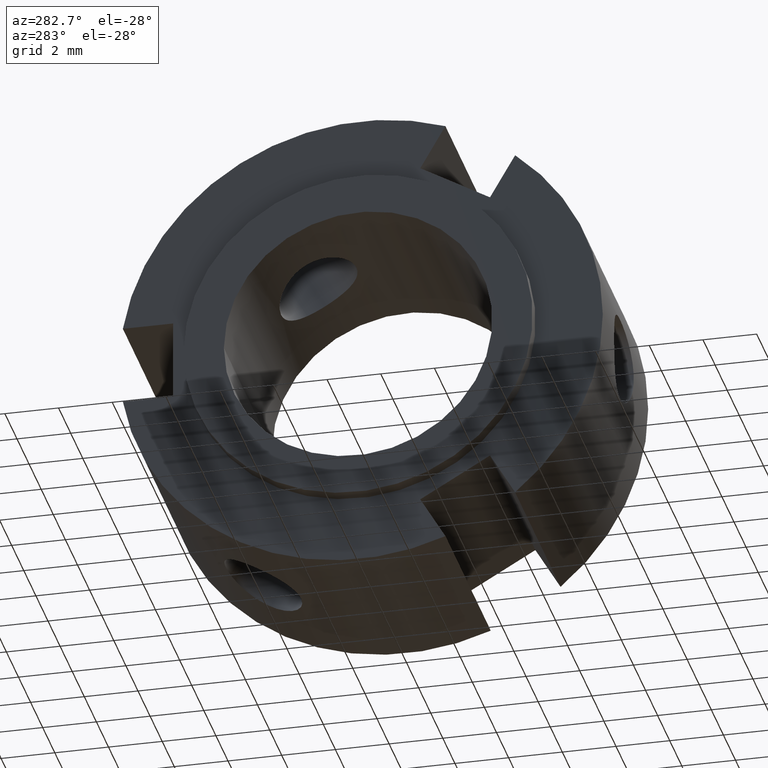
[diagram: clean part render]
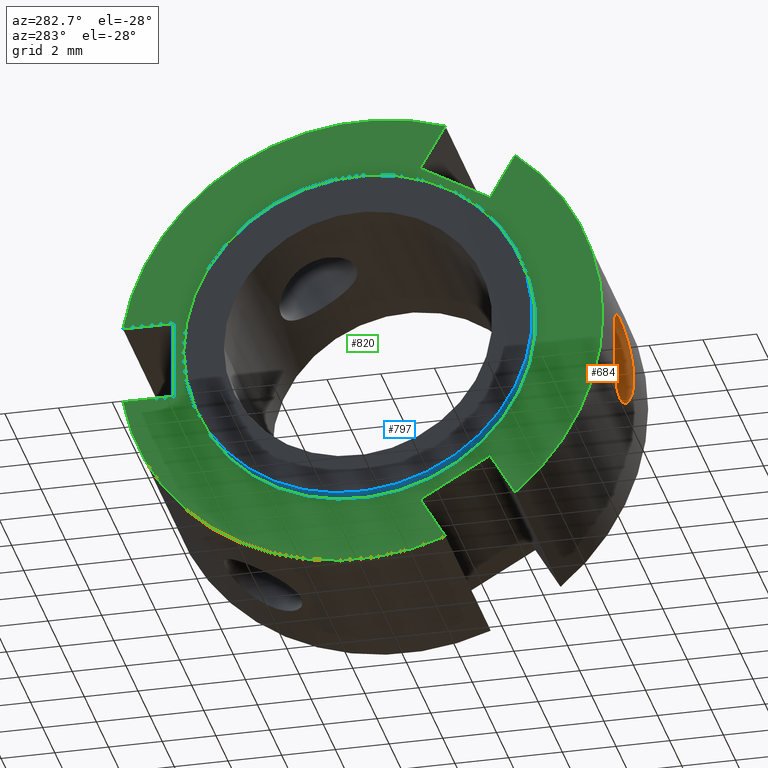
[diagram: same view with three faces highlighted in distinct colors, each labeled with its STEP entity id]
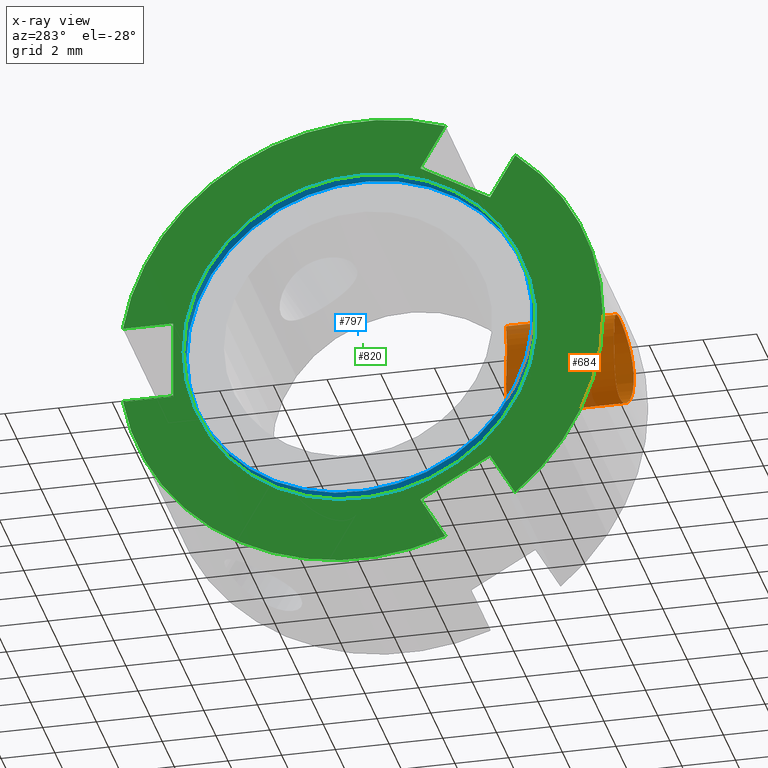
[diagram: x-ray of the same camera — body ghosted, the three highlighted faces saturated]
A machine part, auxiliary view with three faces highlighted in distinct colors.
The next image is the same camera in x-ray (body ghosted, the three faces saturated) — at least one of them is partly hidden behind the body in this view.
Their STEP definitions:

[orange] entity #684 — the highlighted cylindrical surface (bore or boss wall) has radius 1.621 mm, axis along (0, 1, 0).
#593=CARTESIAN_POINT('',(3.999999999999996,-8.852816444499453,1.621000000000000));
#594=VERTEX_POINT('',#593);
#595=CARTESIAN_POINT('',(3.999999999999996,-8.852816444499451,1.621000000000000));
#596=CARTESIAN_POINT('',(4.204019456087718,-8.852816444499451,1.621000000000000));
#597=CARTESIAN_POINT('',(4.421325716287628,-8.860599332632773,1.580135307282737));
#598=CARTESIAN_POINT('',(4.820570121582454,-8.888534203180154,1.414569808063518));
#599=CARTESIAN_POINT('',(5.002547533836670,-8.908263527977558,1.289892650770113));
#600=CARTESIAN_POINT('',(5.289887393896620,-8.945158942178248,1.002552790710165));
#601=CARTESIAN_POINT('',(5.414568672892385,-8.964747677045260,0.820573131104848));
#602=CARTESIAN_POINT('',(5.580137162663212,-8.992359524325192,0.421320970052414));
#603=CARTESIAN_POINT('',(5.620999999999996,-8.999999999999996,0.204011991165529));
#604=CARTESIAN_POINT('',(5.620999999999996,-8.999999999999996,-0.204011991165529));
#605=CARTESIAN_POINT('',(5.580137162663212,-8.992359524325192,-0.421320970052414));
#606=CARTESIAN_POINT('',(5.414568672892385,-8.964747677045260,-0.820573131104848));
#607=CARTESIAN_POINT('',(5.289887393896620,-8.945158942178248,-1.002552790710164));
#608=CARTESIAN_POINT('',(5.002547533836670,-8.908263527977558,-1.289892650770113));
#609=CARTESIAN_POINT('',(4.820570121582454,-8.888534203180154,-1.414569808063518));
#610=CARTESIAN_POINT('',(4.421325716287628,-8.860599332632773,-1.580135307282737));
#611=CARTESIAN_POINT('',(4.204019456087718,-8.852816444499453,-1.621000000000000));
#612=CARTESIAN_POINT('',(3.795980543912274,-8.852816444499453,-1.621000000000000));
#613=CARTESIAN_POINT('',(3.578674283712364,-8.860599332632773,-1.580135307282737));
#614=CARTESIAN_POINT('',(3.179429878417539,-8.888534203180154,-1.414569808063518));
#615=CARTESIAN_POINT('',(2.997452466163322,-8.908263527977558,-1.289892650770113));
#616=CARTESIAN_POINT('',(2.710112606103373,-8.945158942178248,-1.002552790710165));
#617=CARTESIAN_POINT('',(2.585431327107606,-8.964747677045260,-0.820573131104848));
#618=CARTESIAN_POINT('',(2.419862837336780,-8.992359524325192,-0.421320970052414));
#619=CARTESIAN_POINT('',(2.378999999999996,-8.999999999999996,-0.204011991165529));
#620=CARTESIAN_POINT('',(2.378999999999996,-8.999999999999996,0.204011991165528));
#621=CARTESIAN_POINT('',(2.419862837336780,-8.992359524325192,0.421320970052413));
#622=CARTESIAN_POINT('',(2.585431327107606,-8.964747677045260,0.820573131104847));
#623=CARTESIAN_POINT('',(2.710112606103372,-8.945158942178248,1.002552790710164));
#624=CARTESIAN_POINT('',(2.997452466163322,-8.908263527977558,1.289892650770113));
#625=CARTESIAN_POINT('',(3.179429878417539,-8.888534203180154,1.414569808063519));
#626=CARTESIAN_POINT('',(3.578674283712365,-8.860599332632773,1.580135307282737));
#627=CARTESIAN_POINT('',(3.795980543912274,-8.852816444499451,1.621000000000000));
#628=CARTESIAN_POINT('',(3.999999999999995,-8.852816444499451,1.621000000000000));
#629=B_SPLINE_CURVE_WITH_KNOTS('',3,(#595,#596,#597,#598,#599,#600,#601,#602,#603,#604,#605,#606,#607,#608,#609,#610,#611,#612,#613,#614,#615,#616,#617,#618,#619,#620,#621,#622,#623,#624,#625,#626,#627,#628),.UNSPECIFIED.,.T.,.U.,(4,2,2,2,2,2,2,2,2,2,2,2,2,2,2,2,4),(0.0,0.061205836826317,0.122411673652633,0.183615271002292,0.244818868351951,0.306022465701609,0.367226063051268,0.428431899877585,0.489637736703901,0.550843573530218,0.612049410356534,0.673253007706193,0.734456605055852,0.795660202405510,0.856863799755169,0.918069636581486,0.979275473407802),.UNSPECIFIED.);
#630=EDGE_CURVE('',#594,#594,#629,.T.);
#635=CARTESIAN_POINT('',(3.999999999999996,-26.598574287801391,0.0));
#636=DIRECTION('',(0.0,1.0,0.0));
#637=DIRECTION('',(-1.0,0.0,0.0));
#638=AXIS2_PLACEMENT_3D('',#635,#636,#637);
#639=CYLINDRICAL_SURFACE('',#638,1.621000000000000);
#640=ORIENTED_EDGE('',*,*,#630,.F.);
#641=EDGE_LOOP('',(#640));
#642=FACE_OUTER_BOUND('',#641,.T.);
#643=CARTESIAN_POINT('',(3.999999999999996,-4.729942811493602,1.621000000000000));
#644=VERTEX_POINT('',#643);
#645=CARTESIAN_POINT('',(3.999999999999996,-4.729942811493602,1.621000000000000));
#646=CARTESIAN_POINT('',(3.794809539521241,-4.729942811493602,1.621000000000000));
#647=CARTESIAN_POINT('',(3.577054941118309,-4.744696200663902,1.579687599377620));
#648=CARTESIAN_POINT('',(3.178172193797658,-4.796734273099067,1.413822800529395));
#649=CARTESIAN_POINT('',(2.996900401569943,-4.833137749137962,1.289340586176735));
#650=CARTESIAN_POINT('',(2.710718451743308,-4.900538191553338,1.003158636350099));
#651=CARTESIAN_POINT('',(2.586190709500040,-4.936087664543252,0.821863192988777));
#652=CARTESIAN_POINT('',(2.420292057209590,-4.986138971953535,0.422893238604827));
#653=CARTESIAN_POINT('',(2.378999999999996,-5.0,0.205105818386821));
#654=CARTESIAN_POINT('',(2.378999999999996,-5.0,-0.205105818386821));
#655=CARTESIAN_POINT('',(2.420292057209590,-4.986138971953535,-0.422893238604827));
#656=CARTESIAN_POINT('',(2.586190709500040,-4.936087664543252,-0.821863192988777));
#657=CARTESIAN_POINT('',(2.710718451743308,-4.900538191553338,-1.003158636350099));
#658=CARTESIAN_POINT('',(2.996900401569943,-4.833137749137962,-1.289340586176735));
#659=CARTESIAN_POINT('',(3.178172193797658,-4.796734273099067,-1.413822800529395));
#660=CARTESIAN_POINT('',(3.577054941118309,-4.744696200663902,-1.579687599377620));
#661=CARTESIAN_POINT('',(3.794809539521241,-4.729942811493602,-1.621000000000000));
#662=CARTESIAN_POINT('',(4.205190460478750,-4.729942811493602,-1.621000000000000));
#663=CARTESIAN_POINT('',(4.422945058881683,-4.744696200663902,-1.579687599377621));
#664=CARTESIAN_POINT('',(4.821827806202333,-4.796734273099067,-1.413822800529395));
#665=CARTESIAN_POINT('',(5.003099598430048,-4.833137749137962,-1.289340586176735));
#666=CARTESIAN_POINT('',(5.289281548256684,-4.900538191553338,-1.003158636350099));
#667=CARTESIAN_POINT('',(5.413809290499953,-4.936087664543252,-0.821863192988777));
#668=CARTESIAN_POINT('',(5.579707942790403,-4.986138971953535,-0.422893238604827));
#669=CARTESIAN_POINT('',(5.620999999999996,-5.0,-0.205105818386821));
#670=CARTESIAN_POINT('',(5.620999999999996,-5.0,0.205105818386821));
#671=CARTESIAN_POINT('',(5.579707942790403,-4.986138971953535,0.422893238604827));
#672=CARTESIAN_POINT('',(5.413809290499953,-4.936087664543252,0.821863192988777));
#673=CARTESIAN_POINT('',(5.289281548256684,-4.900538191553338,1.003158636350099));
#674=CARTESIAN_POINT('',(5.003099598430048,-4.833137749137962,1.289340586176735));
#675=CARTESIAN_POINT('',(4.821827806202333,-4.796734273099067,1.413822800529395));
#676=CARTESIAN_POINT('',(4.422945058881683,-4.744696200663902,1.579687599377620));
#677=CARTESIAN_POINT('',(4.205190460478751,-4.729942811493602,1.621000000000000));
#678=CARTESIAN_POINT('',(3.999999999999996,-4.729942811493602,1.621000000000000));
#679=B_SPLINE_CURVE_WITH_KNOTS('',3,(#645,#646,#647,#648,#649,#650,#651,#652,#653,#654,#655,#656,#657,#658,#659,#660,#661,#662,#663,#664,#665,#666,#667,#668,#669,#670,#671,#672,#673,#674,#675,#676,#677,#678),.UNSPECIFIED.,.T.,.U.,(4,2,2,2,2,2,2,2,2,2,2,2,2,2,2,2,4),(0.0,0.061557138143626,0.123114276287253,0.184646021803299,0.246177767319345,0.307709512835392,0.369241258351438,0.430798396495064,0.492355534638691,0.553912672782317,0.615469810925944,0.677001556441990,0.738533301958036,0.800065047474082,0.861596792990129,0.923153931133755,0.984711069277382),.UNSPECIFIED.);
#680=EDGE_CURVE('',#644,#644,#679,.T.);
#681=ORIENTED_EDGE('',*,*,#680,.F.);
#682=EDGE_LOOP('',(#681));
#683=FACE_BOUND('',#682,.T.);
#684=ADVANCED_FACE('',(#642,#683),#639,.F.);

[blue] entity #797 — the highlighted cylindrical surface (bore or boss wall) has radius 6.5 mm, axis along (1, 0, 0).
#755=CARTESIAN_POINT('',(0.0,6.499999999999998,0.0));
#756=VERTEX_POINT('',#755);
#757=CARTESIAN_POINT('',(0.0,0.0,0.0));
#758=DIRECTION('',(1.0,0.0,0.0));
#759=DIRECTION('',(0.0,1.0,0.0));
#760=AXIS2_PLACEMENT_3D('',#757,#758,#759);
#761=CIRCLE('',#760,6.499999999999998);
#762=EDGE_CURVE('',#756,#756,#761,.T.);
#778=CARTESIAN_POINT('',(0.249999999999999,0.0,0.0));
#779=DIRECTION('',(1.0,0.0,0.0));
#780=DIRECTION('',(0.0,1.0,0.0));
#781=AXIS2_PLACEMENT_3D('',#778,#779,#780);
#782=CYLINDRICAL_SURFACE('',#781,6.499999999999998);
#783=CARTESIAN_POINT('',(0.499999999999998,6.499999999999998,0.0));
#784=VERTEX_POINT('',#783);
#785=CARTESIAN_POINT('',(0.499999999999998,0.0,0.0));
#786=DIRECTION('',(1.0,0.0,0.0));
#787=DIRECTION('',(0.0,1.0,0.0));
#788=AXIS2_PLACEMENT_3D('',#785,#786,#787);
#789=CIRCLE('',#788,6.499999999999998);
#790=EDGE_CURVE('',#784,#784,#789,.T.);
#791=ORIENTED_EDGE('',*,*,#790,.F.);
#792=EDGE_LOOP('',(#791));
#793=FACE_OUTER_BOUND('',#792,.T.);
#794=ORIENTED_EDGE('',*,*,#762,.T.);
#795=EDGE_LOOP('',(#794));
#796=FACE_BOUND('',#795,.T.);
#797=ADVANCED_FACE('',(#793,#796),#782,.T.);

[green] entity #820 — the highlighted planar face has unit normal (-1, 0, 0).
#73=CARTESIAN_POINT('',(0.499999999999998,-4.799038105676660,-5.312177826491067));
#74=VERTEX_POINT('',#73);
#75=CARTESIAN_POINT('',(0.499999999999998,-5.736097943001372,-6.935213074469693));
#76=VERTEX_POINT('',#75);
#77=CARTESIAN_POINT('',(0.499999999999999,-4.799038105676662,-5.312177826491067));
#78=DIRECTION('',(0.0,-0.500000000000000,-0.866025403784438));
#79=VECTOR('',#78,1.874119674649423);
#80=LINE('',#77,#79);
#81=EDGE_CURVE('',#74,#76,#80,.T.);
#113=CARTESIAN_POINT('',(0.499999999999998,-3.138021731648057,-8.435213074469697));
#114=VERTEX_POINT('',#113);
#115=CARTESIAN_POINT('',(0.499999999999998,-2.200961894323345,-6.812177826491068));
#116=VERTEX_POINT('',#115);
#117=CARTESIAN_POINT('',(0.499999999999999,-3.138021731648059,-8.435213074469697));
#118=DIRECTION('',(0.0,0.500000000000000,0.866025403784438));
#119=VECTOR('',#118,1.874119674649425);
#120=LINE('',#117,#119);
#121=EDGE_CURVE('',#114,#116,#120,.T.);
#153=CARTESIAN_POINT('',(0.499999999999999,-2.200961894323346,-6.812177826491068));
#154=DIRECTION('',(0.0,-0.866025403784438,0.500000000000000));
#155=VECTOR('',#154,3.000000000000001);
#156=LINE('',#153,#155);
#157=EDGE_CURVE('',#116,#74,#156,.T.);
#263=CARTESIAN_POINT('',(0.499999999999998,-2.200961894323339,6.812177826491070));
#264=VERTEX_POINT('',#263);
#265=CARTESIAN_POINT('',(0.499999999999998,-3.138021731648051,8.435213074469697));
#266=VERTEX_POINT('',#265);
#267=CARTESIAN_POINT('',(0.499999999999999,-2.200961894323339,6.812177826491070));
#268=DIRECTION('',(0.0,-0.499999999999999,0.866025403784439));
#269=VECTOR('',#268,1.874119674649426);
#270=LINE('',#267,#269);
#271=EDGE_CURVE('',#264,#266,#270,.T.);
#303=CARTESIAN_POINT('',(0.499999999999998,-5.736097943001367,6.935213074469698));
#304=VERTEX_POINT('',#303);
#305=CARTESIAN_POINT('',(0.499999999999998,-4.799038105676656,5.312177826491070));
#306=VERTEX_POINT('',#305);
#307=CARTESIAN_POINT('',(0.499999999999999,-5.736097943001367,6.935213074469698));
#308=DIRECTION('',(0.0,0.500000000000000,-0.866025403784439));
#309=VECTOR('',#308,1.874119674649423);
#310=LINE('',#307,#309);
#311=EDGE_CURVE('',#304,#306,#310,.T.);
#343=CARTESIAN_POINT('',(0.499999999999999,-4.799038105676658,5.312177826491071));
#344=DIRECTION('',(0.0,0.866025403784439,0.500000000000000));
#345=VECTOR('',#344,3.000000000000001);
#346=LINE('',#343,#345);
#347=EDGE_CURVE('',#306,#264,#346,.T.);
#527=CARTESIAN_POINT('',(0.499999999999998,8.874119674649421,1.500000000000000));
#528=VERTEX_POINT('',#527);
#535=CARTESIAN_POINT('',(0.499999999999998,0.0,0.0));
#536=DIRECTION('',(1.0,0.0,0.0));
#537=DIRECTION('',(0.0,1.0,0.0));
#538=AXIS2_PLACEMENT_3D('',#535,#536,#537);
#539=CIRCLE('',#538,8.999999999999996);
#540=EDGE_CURVE('',#528,#266,#539,.T.);
#554=CARTESIAN_POINT('',(0.499999999999998,8.874119674649421,-1.500000000000000));
#555=VERTEX_POINT('',#554);
#556=CARTESIAN_POINT('',(0.499999999999998,0.0,0.0));
#557=DIRECTION('',(1.0,0.0,0.0));
#558=DIRECTION('',(0.0,1.0,0.0));
#559=AXIS2_PLACEMENT_3D('',#556,#557,#558);
#560=CIRCLE('',#559,8.999999999999996);
#561=EDGE_CURVE('',#114,#555,#560,.T.);
#584=CARTESIAN_POINT('',(0.499999999999998,0.0,0.0));
#585=DIRECTION('',(1.0,0.0,0.0));
#586=DIRECTION('',(0.0,1.0,0.0));
#587=AXIS2_PLACEMENT_3D('',#584,#585,#586);
#588=CIRCLE('',#587,8.999999999999996);
#589=EDGE_CURVE('',#304,#76,#588,.T.);
#690=CARTESIAN_POINT('',(0.499999999999998,6.999999999999997,-1.500000000000000));
#691=VERTEX_POINT('',#690);
#692=CARTESIAN_POINT('',(0.499999999999998,6.999999999999997,-1.500000000000000));
#693=DIRECTION('',(0.0,1.0,0.0));
#694=VECTOR('',#693,1.874119674649424);
#695=LINE('',#692,#694);
#696=EDGE_CURVE('',#691,#555,#695,.T.);
#714=CARTESIAN_POINT('',(0.499999999999998,6.999999999999997,1.500000000000000));
#715=VERTEX_POINT('',#714);
#716=CARTESIAN_POINT('',(0.499999999999998,8.874119674649421,1.500000000000000));
#717=DIRECTION('',(0.0,-1.0,0.0));
#718=VECTOR('',#717,1.874119674649425);
#719=LINE('',#716,#718);
#720=EDGE_CURVE('',#528,#715,#719,.T.);
#738=CARTESIAN_POINT('',(0.499999999999998,6.999999999999997,1.500000000000000));
#739=DIRECTION('',(0.0,0.0,-1.0));
#740=VECTOR('',#739,3.000000000000001);
#741=LINE('',#738,#740);
#742=EDGE_CURVE('',#715,#691,#741,.T.);
#783=CARTESIAN_POINT('',(0.499999999999998,6.499999999999998,0.0));
#784=VERTEX_POINT('',#783);
#785=CARTESIAN_POINT('',(0.499999999999998,0.0,0.0));
#786=DIRECTION('',(1.0,0.0,0.0));
#787=DIRECTION('',(0.0,1.0,0.0));
#788=AXIS2_PLACEMENT_3D('',#785,#786,#787);
#789=CIRCLE('',#788,6.499999999999998);
#790=EDGE_CURVE('',#784,#784,#789,.T.);
#798=CARTESIAN_POINT('',(0.499999999999998,7.749999999999996,0.0));
#799=DIRECTION('',(-1.0,0.0,0.0));
#800=DIRECTION('',(0.0,0.0,1.0));
#801=AXIS2_PLACEMENT_3D('',#798,#799,#800);
#802=PLANE('',#801);
#803=ORIENTED_EDGE('',*,*,#81,.T.);
#804=ORIENTED_EDGE('',*,*,#589,.F.);
#805=ORIENTED_EDGE('',*,*,#311,.T.);
#806=ORIENTED_EDGE('',*,*,#347,.T.);
#807=ORIENTED_EDGE('',*,*,#271,.T.);
#808=ORIENTED_EDGE('',*,*,#540,.F.);
#809=ORIENTED_EDGE('',*,*,#720,.T.);
#810=ORIENTED_EDGE('',*,*,#742,.T.);
#811=ORIENTED_EDGE('',*,*,#696,.T.);
#812=ORIENTED_EDGE('',*,*,#561,.F.);
#813=ORIENTED_EDGE('',*,*,#121,.T.);
#814=ORIENTED_EDGE('',*,*,#157,.T.);
#815=EDGE_LOOP('',(#803,#804,#805,#806,#807,#808,#809,#810,#811,#812,#813,#814));
#816=FACE_OUTER_BOUND('',#815,.T.);
#817=ORIENTED_EDGE('',*,*,#790,.T.);
#818=EDGE_LOOP('',(#817));
#819=FACE_BOUND('',#818,.T.);
#820=ADVANCED_FACE('',(#816,#819),#802,.T.);